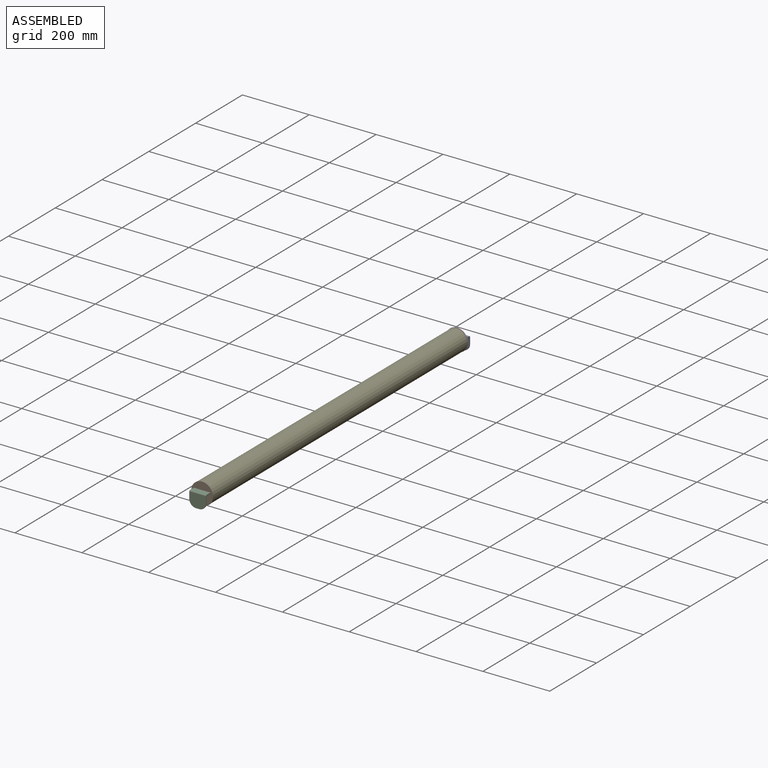
[diagram: assembled view]
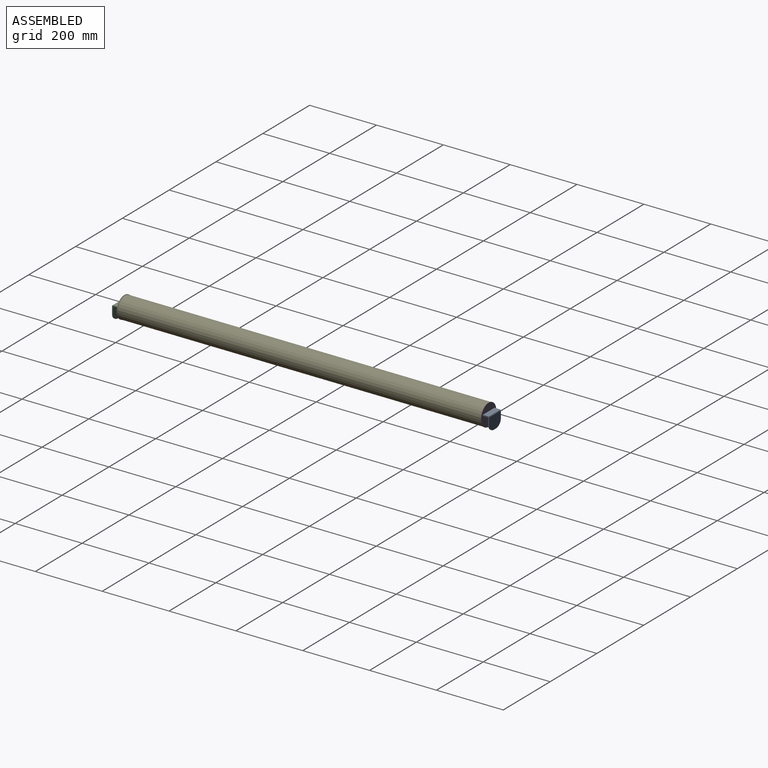
[diagram: assembled view, second angle]
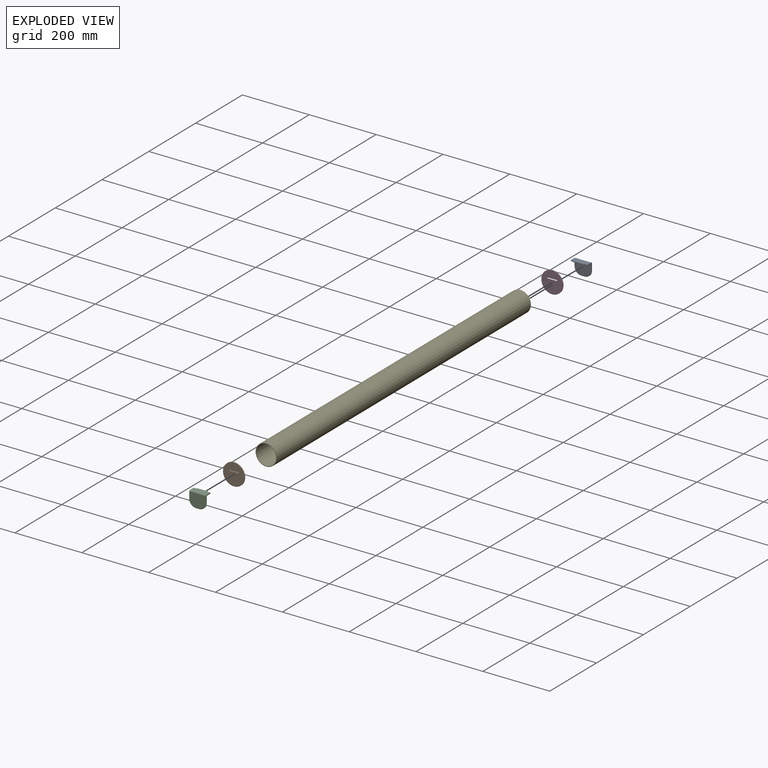
[diagram: exploded view]
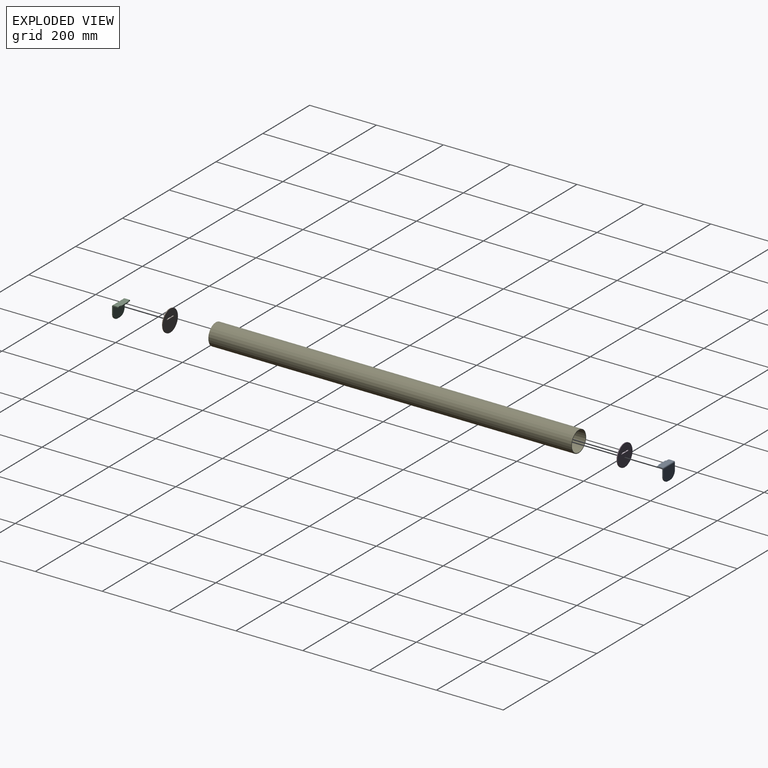
[diagram: exploded view, second angle]
ASSEMBLY  parts=5 mates=4
PART A: 16 faces, bbox 21.2x50x43 mm
  f0: plane 10x3mm, normal (-1,0,0), area 30mm2, adj f3,f5,f8,f9
  f1: plane 10x3mm, normal (0,0,-1), area 30mm2, adj f2,f6,f14,f15
  f2: plane 50x40mm, normal (1,0,0), area 1828.3mm2, adj f1,f7,f8,f12,f14,f15
  f3: plane 50x18.2mm, normal (0,0,1), area 866mm2, adj f0,f4,f7,f8,f9,f10,f11,f12
  f4: plane 10x3mm, normal (-1,0,0), area 30mm2, adj f3,f5,f7,f10
  f5: plane 50x16.2mm, normal (0,0,-1), area 766mm2, adj f0,f4,f7,f8,f9,f10,f11,f13
  f6: plane 50x38mm, normal (-1,0,0), area 1728.3mm2, adj f1,f7,f8,f13,f14,f15
  f7: plane 23x19mm, normal (0,-1,0), area 115.9mm2, adj f2,f3,f4,f5,f6,f12,f13,f15
  f8: plane 23x19mm, normal (0,1,0), area 115.9mm2, adj f0,f2,f3,f5,f6,f12,f13,f14
  f9: plane 3x2.2mm, normal (0,1,0), area 6.6mm2, adj f0,f3,f5,f11
  f10: plane 3x2.2mm, normal (0,-1,0), area 6.6mm2, adj f3,f4,f5,f11
  f11: plane 30x3mm, normal (-1,0,0), area 90mm2, adj f3,f5,f9,f10
  f12: cylinder r=3mm len=50mm, axis (0,1,0), area 235.6mm2, adj f2,f3,f7,f8
  f13: cylinder r=2mm len=50mm, axis (0,-1,0), area 157.1mm2, adj f5,f6,f7,f8
  f14: cylinder r=20mm len=20mm, axis (1,0,0), area 94.2mm2, adj f1,f2,f6,f8
  f15: cylinder r=20mm len=20mm, axis (-1,0,0), area 94.2mm2, adj f1,f2,f6,f7
PART B: 7 faces, bbox 65x2.2x65 mm
  f0: plane 3x2.18mm, normal (1,0,0), area 6.5mm2, adj f1,f3,f5,f6
  f1: plane 30x2.18mm, normal (0,0,-1), area 65.4mm2, adj f0,f2,f5,f6
  f2: plane 3x2.18mm, normal (-1,0,0), area 6.5mm2, adj f1,f3,f5,f6
  f3: plane 30x2.18mm, normal (0,0,1), area 65.4mm2, adj f0,f2,f5,f6
  f4: cylinder r=32.5mm len=65mm, axis (0,1,0), area 445.2mm2, adj f5,f6
  f5: plane 65x65mm, normal (0,-1,0), area 3228.3mm2, adj f0,f1,f2,f3,f4
  f6: plane 65x65mm, normal (0,1,0), area 3228.3mm2, adj f0,f1,f2,f3,f4
PART C: same geometry as A
PART D: same geometry as B
PART E: 4 faces, bbox 63.5x1086x63.5 mm
  f0: cylinder r=29.75mm len=1086mm, axis (0,1,0), area 203000.3mm2, adj f2,f3
  f1: cylinder r=31.75mm len=1086mm, axis (0,1,0), area 216647.4mm2, adj f2,f3
  f2: plane 63.5x63.5mm, normal (0,-1,0), area 386.4mm2, adj f0,f1
  f3: plane 63.5x63.5mm, normal (0,1,0), area 386.4mm2, adj f0,f1
PLACE A rot(axis=(0,0,1),90deg) t=(-317.72,251.17,-181.02)mm
PLACE B rot(axis=(0,0,1),0deg) t=(-292.72,-837.01,-187.52)mm
PLACE C rot(axis=(0,0,-1),90deg) t=(-267.72,-839.19,-181.02)mm
PLACE D t=(-292.72,251.17,-187.52)mm
PLACE E t=(-292.72,248.99,-187.52)mm
MATE fastened B.f4 <-> E.f0  axis (0,1,0) through (-292.72,-837.01,-187.52)mm
MATE fastened B.f5 <-> C.f4  axis (0,-1,0) through (-292.72,-839.19,-179.52)mm
MATE fastened D.f6 <-> A.f4  axis (0,1,0) through (-292.72,251.17,-179.52)mm
MATE fastened D.f4 <-> E.f0  axis (0,-1,0) through (-292.72,248.99,-187.52)mm
